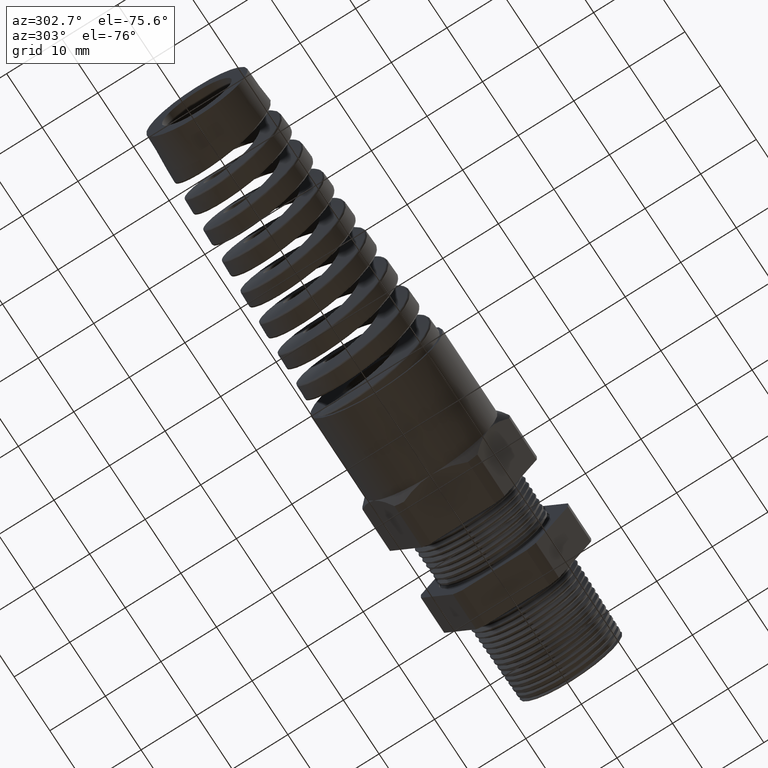
[diagram: clean part render]
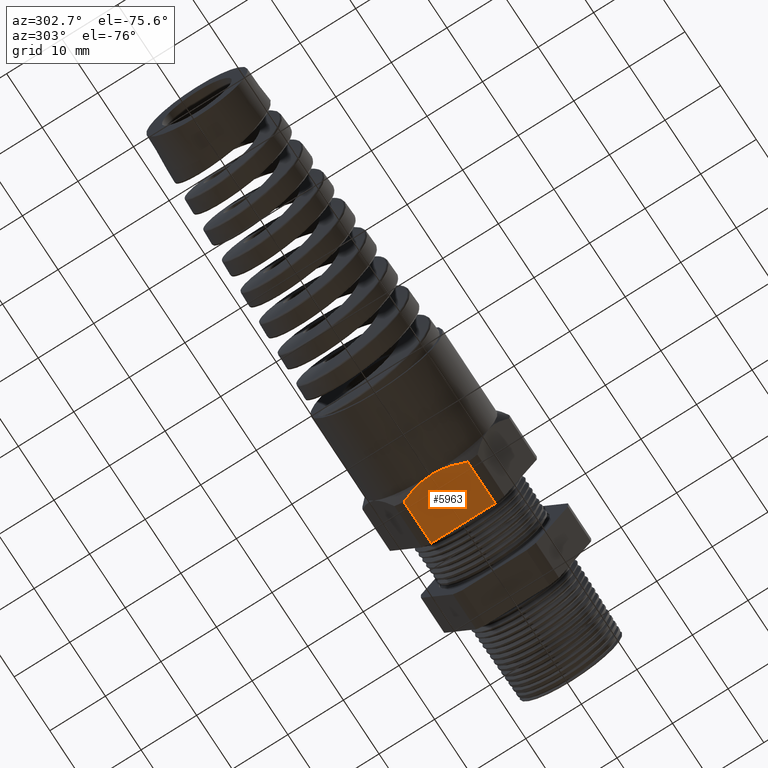
[diagram: same view with one face highlighted and labeled with its STEP entity id]
A machine part, auxiliary view. The second image highlights one B-rep face of the part: STEP entity #5963.
In plain terms, the highlighted planar face has unit normal (0, 0, -1).
Its self-contained STEP definition (entity closure, byte-faithful):
#5709 = CARTESIAN_POINT ( 'NONE',  ( -1.263700787401574700, 0.0000000000000000000, -0.4700000000000000800 ) ) ;
#5942 = ORIENTED_EDGE ( 'NONE', *, *, #5981, .F. ) ;
#5943 = VERTEX_POINT ( 'NONE', #16158 ) ;
#5944 = VERTEX_POINT ( 'NONE', #16156 ) ;
#5947 = EDGE_CURVE ( 'NONE', #5980, #5943, #16140, .T. ) ;
#5948 = ORIENTED_EDGE ( 'NONE', *, *, #5968, .F. ) ;
#5951 = EDGE_CURVE ( 'NONE', #5943, #14303, #16272, .T. ) ;
#5957 = ORIENTED_EDGE ( 'NONE', *, *, #5947, .T. ) ;
#5962 = VERTEX_POINT ( 'NONE', #16315 ) ;
#5963 = ADVANCED_FACE ( 'NONE', ( #16313 ), #16309, .T. ) ;
#5968 = EDGE_CURVE ( 'NONE', #5980, #5944, #16429, .T. ) ;
#5972 = ORIENTED_EDGE ( 'NONE', *, *, #5976, .T. ) ;
#5976 = EDGE_CURVE ( 'NONE', #14303, #5962, #16385, .T. ) ;
#5977 = EDGE_LOOP ( 'NONE', ( #5957, #5979, #5972, #5942, #5948 ) ) ;
#5979 = ORIENTED_EDGE ( 'NONE', *, *, #5951, .T. ) ;
#5980 = VERTEX_POINT ( 'NONE', #16389 ) ;
#5981 = EDGE_CURVE ( 'NONE', #5944, #5962, #16387, .T. ) ;
#14303 = VERTEX_POINT ( 'NONE', #5709 ) ;
#16137 = DIRECTION ( 'NONE',  ( -1.000000000000000000, 0.0000000000000000000, 0.0000000000000000000 ) ) ;
#16138 = VECTOR ( 'NONE', #16137, 39.37007874015748100 ) ;
#16139 = CARTESIAN_POINT ( 'NONE',  ( 0.2800000000000000300, -0.2264307620443829500, -0.4700000000000000800 ) ) ;
#16140 = LINE ( 'NONE', #16139, #16138 ) ;
#16156 = CARTESIAN_POINT ( 'NONE',  ( -0.9093700787401572900, 0.2264307620443829200, -0.4700000000000000800 ) ) ;
#16158 = CARTESIAN_POINT ( 'NONE',  ( -1.212000787401574600, -0.2264307620443829500, -0.4700000000000000800 ) ) ;
#16247 = CARTESIAN_POINT ( 'NONE',  ( -1.263700787401574700, 0.0000000000000000000, -0.4700000000000000800 ) ) ;
#16249 = CARTESIAN_POINT ( 'NONE',  ( -1.263700787401574700, -0.03934296915062174300, -0.4700000000000002500 ) ) ;
#16251 = CARTESIAN_POINT ( 'NONE',  ( -1.258715606046688600, -0.07783554612607075700, -0.4700000000000000800 ) ) ;
#16253 = CARTESIAN_POINT ( 'NONE',  ( -1.245168396511388900, -0.1345390626635393500, -0.4700000000000002000 ) ) ;
#16255 = CARTESIAN_POINT ( 'NONE',  ( -1.239649360459591700, -0.1532690879941741300, -0.4700000000000002000 ) ) ;
#16257 = CARTESIAN_POINT ( 'NONE',  ( -1.226886374871043700, -0.1904348960138964300, -0.4700000000000000800 ) ) ;
#16259 = CARTESIAN_POINT ( 'NONE',  ( -1.219737667600870700, -0.2086048696456205000, -0.4700000000000002500 ) ) ;
#16261 = CARTESIAN_POINT ( 'NONE',  ( -1.212000787401574600, -0.2264307620443829500, -0.4700000000000000800 ) ) ;
#16272 = B_SPLINE_CURVE_WITH_KNOTS ( 'NONE', 3,
 ( #16261, #16259, #16257, #16255, #16253, #16251, #16249, #16247 ),
 .UNSPECIFIED., .F., .F.,
 ( 4, 2, 2, 4 ),
 ( 0.008098547117357340200, 0.009570982036025183300, 0.01104341695469301900, 0.01398828679202869500 ),
 .UNSPECIFIED. ) ;
#16285 = DIRECTION ( 'NONE',  ( -1.000000000000000000, 0.0000000000000000000, 0.0000000000000000000 ) ) ;
#16287 = DIRECTION ( 'NONE',  ( 0.0000000000000000000, 0.0000000000000000000, -1.000000000000000000 ) ) ;
#16289 = CARTESIAN_POINT ( 'NONE',  ( 0.2800000000000000300, 0.2264307620443829500, -0.4700000000000000800 ) ) ;
#16290 = AXIS2_PLACEMENT_3D ( 'NONE', #16289, #16287, #16285 ) ;
#16309 = PLANE ( 'NONE',  #16290 ) ;
#16313 = FACE_OUTER_BOUND ( 'NONE', #5977, .T. ) ;
#16315 = CARTESIAN_POINT ( 'NONE',  ( -1.212000787401574600, 0.2264307620443829200, -0.4700000000000000800 ) ) ;
#16359 = CARTESIAN_POINT ( 'NONE',  ( -1.239629789118527300, 0.1533252955870066700, -0.4699999999999999700 ) ) ;
#16361 = CARTESIAN_POINT ( 'NONE',  ( -1.245139070595120000, 0.1346420459264777700, -0.4700000000000000300 ) ) ;
#16363 = CARTESIAN_POINT ( 'NONE',  ( -1.254168009292882000, 0.09688970369981476900, -0.4700000000000000800 ) ) ;
#16365 = CARTESIAN_POINT ( 'NONE',  ( -1.257686486788884000, 0.07782038235249973100, -0.4700000000000000800 ) ) ;
#16367 = CARTESIAN_POINT ( 'NONE',  ( -1.262454027609556600, 0.03924163778662356800, -0.4700000000000002000 ) ) ;
#16369 = CARTESIAN_POINT ( 'NONE',  ( -1.263700787401574400, 0.01964242875915816300, -0.4700000000000000800 ) ) ;
#16371 = CARTESIAN_POINT ( 'NONE',  ( -1.263700787401574700, 0.0000000000000000000, -0.4700000000000000800 ) ) ;
#16373 = CARTESIAN_POINT ( 'NONE',  ( 0.2800000000000000300, 0.2264307620443829200, -0.4700000000000000800 ) ) ;
#16385 = B_SPLINE_CURVE_WITH_KNOTS ( 'NONE', 3,
 ( #16371, #16369, #16367, #16365, #16363, #16361, #16359, #16513, #16511, #16509 ),
 .UNSPECIFIED., .F., .F.,
 ( 4, 2, 2, 2, 4 ),
 ( 0.01398828679202869500, 0.01545854684696777600, 0.01692880690190685600, 0.01839906695684593400, 0.01986932701178501700 ),
 .UNSPECIFIED. ) ;
#16387 = LINE ( 'NONE', #16373, #16507 ) ;
#16389 = CARTESIAN_POINT ( 'NONE',  ( -0.9093700787401572900, -0.2264307620443829500, -0.4700000000000000800 ) ) ;
#16424 = DIRECTION ( 'NONE',  ( 0.0000000000000000000, 1.000000000000000000, 0.0000000000000000000 ) ) ;
#16425 = VECTOR ( 'NONE', #16424, 39.37007874015748100 ) ;
#16427 = CARTESIAN_POINT ( 'NONE',  ( -0.9093700787401572900, 0.3950000000000000200, -0.4700000000000000800 ) ) ;
#16429 = LINE ( 'NONE', #16427, #16425 ) ;
#16505 = DIRECTION ( 'NONE',  ( -1.000000000000000000, 0.0000000000000000000, 0.0000000000000000000 ) ) ;
#16507 = VECTOR ( 'NONE', #16505, 39.37007874015748100 ) ;
#16509 = CARTESIAN_POINT ( 'NONE',  ( -1.212000787401574600, 0.2264307620443829200, -0.4700000000000000800 ) ) ;
#16511 = CARTESIAN_POINT ( 'NONE',  ( -1.219737517183348900, 0.2086052162099335200, -0.4700000000000002500 ) ) ;
#16513 = CARTESIAN_POINT ( 'NONE',  ( -1.226911610827741600, 0.1903621927138389200, -0.4700000000000000800 ) ) ;